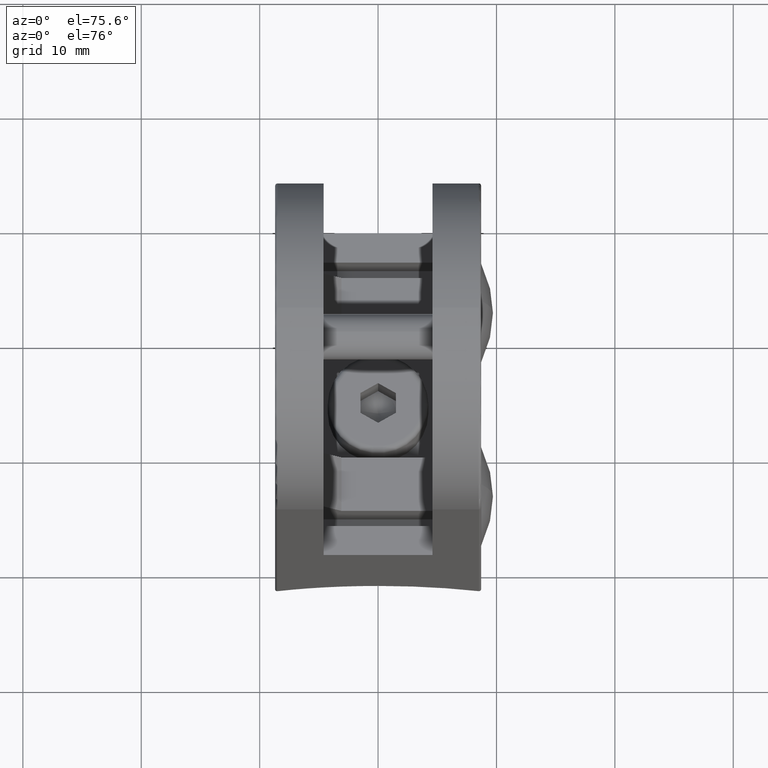
[diagram: clean part render]
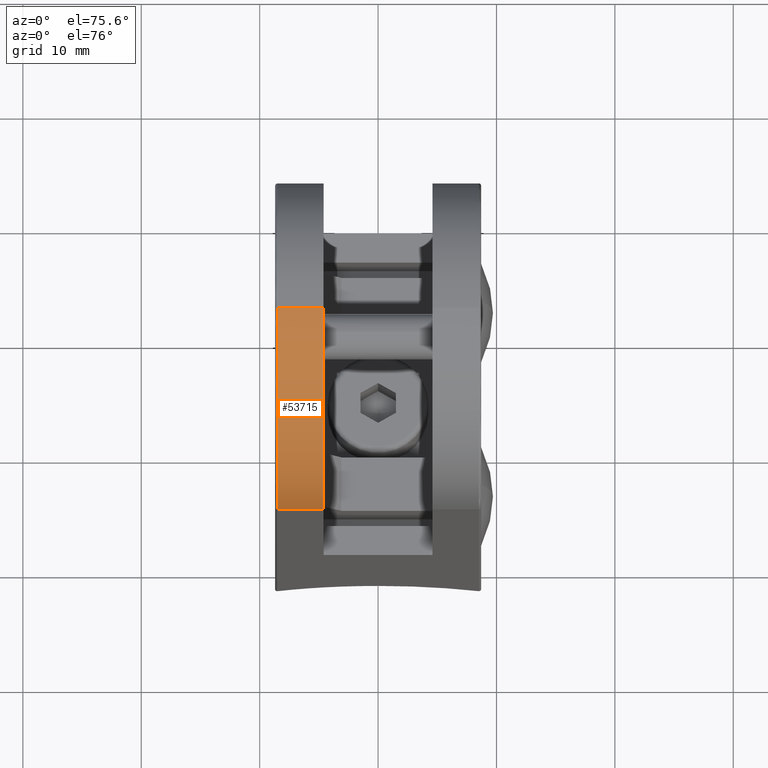
[diagram: same view with one face highlighted and labeled with its STEP entity id]
A machine part, auxiliary view. The second image highlights one B-rep face of the part: STEP entity #53715.
In plain terms, the highlighted cylindrical surface (partial cylindrical patch) has radius 14 mm, axis along (-1, -0, -0).
Its self-contained STEP definition (entity closure, byte-faithful):
#89 = CARTESIAN_POINT ( 'NONE',  ( 4.099999999999999600, 0.0000000000000000000, 39.99999999999999300 ) ) ;
#1145 = LINE ( 'NONE', #16132, #43469 ) ;
#1762 = CARTESIAN_POINT ( 'NONE',  ( 4.099999999999999600, 0.0000000000000000000, 25.99999999999999600 ) ) ;
#2633 = VERTEX_POINT ( 'NONE', #89 ) ;
#3839 = DIRECTION ( 'NONE',  ( 0.0000000000000000000, 0.0000000000000000000, 1.000000000000000000 ) ) ;
#5667 = EDGE_CURVE ( 'NONE', #46051, #23501, #1145, .T. ) ;
#6546 = CARTESIAN_POINT ( 'NONE',  ( 4.099999999999999600, 0.0000000000000000000, 25.99999999999999600 ) ) ;
#6556 = EDGE_CURVE ( 'NONE', #26577, #23501, #9291, .T. ) ;
#7482 = DIRECTION ( 'NONE',  ( -1.000000000000000000, -0.0000000000000000000, -0.0000000000000000000 ) ) ;
#8967 = CARTESIAN_POINT ( 'NONE',  ( 0.2000000000000000900, 0.0000000000000000000, 39.99999999999999300 ) ) ;
#9291 = CIRCLE ( 'NONE', #55201, 13.99999999999999500 ) ;
#11111 = CYLINDRICAL_SURFACE ( 'NONE', #44031, 13.99999999999999800 ) ;
#12957 = CARTESIAN_POINT ( 'NONE',  ( 0.2000000000000000900, 0.0000000000000000000, 25.99999999999999600 ) ) ;
#14877 = LINE ( 'NONE', #27153, #39513 ) ;
#16132 = CARTESIAN_POINT ( 'NONE',  ( 4.099999999999999600, -13.99999999999999500, 25.99999999999999600 ) ) ;
#16241 = AXIS2_PLACEMENT_3D ( 'NONE', #1762, #49293, #45657 ) ;
#16244 = ORIENTED_EDGE ( 'NONE', *, *, #6556, .T. ) ;
#18516 = DIRECTION ( 'NONE',  ( -1.000000000000000000, -0.0000000000000000000, -0.0000000000000000000 ) ) ;
#19041 = CARTESIAN_POINT ( 'NONE',  ( 0.2000000000000000900, -13.99999999999999500, 25.99999999999999600 ) ) ;
#23501 = VERTEX_POINT ( 'NONE', #19041 ) ;
#25817 = DIRECTION ( 'NONE',  ( 0.0000000000000000000, 0.0000000000000000000, -1.000000000000000000 ) ) ;
#26577 = VERTEX_POINT ( 'NONE', #8967 ) ;
#27153 = CARTESIAN_POINT ( 'NONE',  ( 4.099999999999999600, 0.0000000000000000000, 39.99999999999999300 ) ) ;
#27252 = EDGE_CURVE ( 'NONE', #2633, #46051, #35579, .T. ) ;
#35579 = CIRCLE ( 'NONE', #16241, 13.99999999999999500 ) ;
#38129 = DIRECTION ( 'NONE',  ( -1.000000000000000000, -0.0000000000000000000, -0.0000000000000000000 ) ) ;
#39513 = VECTOR ( 'NONE', #18516, 1000.000000000000000 ) ;
#39656 = CARTESIAN_POINT ( 'NONE',  ( 4.099999999999999600, -13.99999999999999500, 25.99999999999999600 ) ) ;
#42297 = EDGE_CURVE ( 'NONE', #2633, #26577, #14877, .T. ) ;
#43165 = DIRECTION ( 'NONE',  ( 1.000000000000000000, 0.0000000000000000000, 0.0000000000000000000 ) ) ;
#43469 = VECTOR ( 'NONE', #38129, 1000.000000000000000 ) ;
#44031 = AXIS2_PLACEMENT_3D ( 'NONE', #6546, #7482, #3839 ) ;
#44175 = ORIENTED_EDGE ( 'NONE', *, *, #42297, .T. ) ;
#45039 = EDGE_LOOP ( 'NONE', ( #47978, #44175, #16244, #52772 ) ) ;
#45657 = DIRECTION ( 'NONE',  ( 0.0000000000000000000, 0.0000000000000000000, -1.000000000000000000 ) ) ;
#46051 = VERTEX_POINT ( 'NONE', #39656 ) ;
#47978 = ORIENTED_EDGE ( 'NONE', *, *, #27252, .F. ) ;
#49293 = DIRECTION ( 'NONE',  ( 1.000000000000000000, 0.0000000000000000000, 0.0000000000000000000 ) ) ;
#52772 = ORIENTED_EDGE ( 'NONE', *, *, #5667, .F. ) ;
#53715 = ADVANCED_FACE ( 'NONE', ( #54848 ), #11111, .T. ) ;
#54848 = FACE_OUTER_BOUND ( 'NONE', #45039, .T. ) ;
#55201 = AXIS2_PLACEMENT_3D ( 'NONE', #12957, #43165, #25817 ) ;